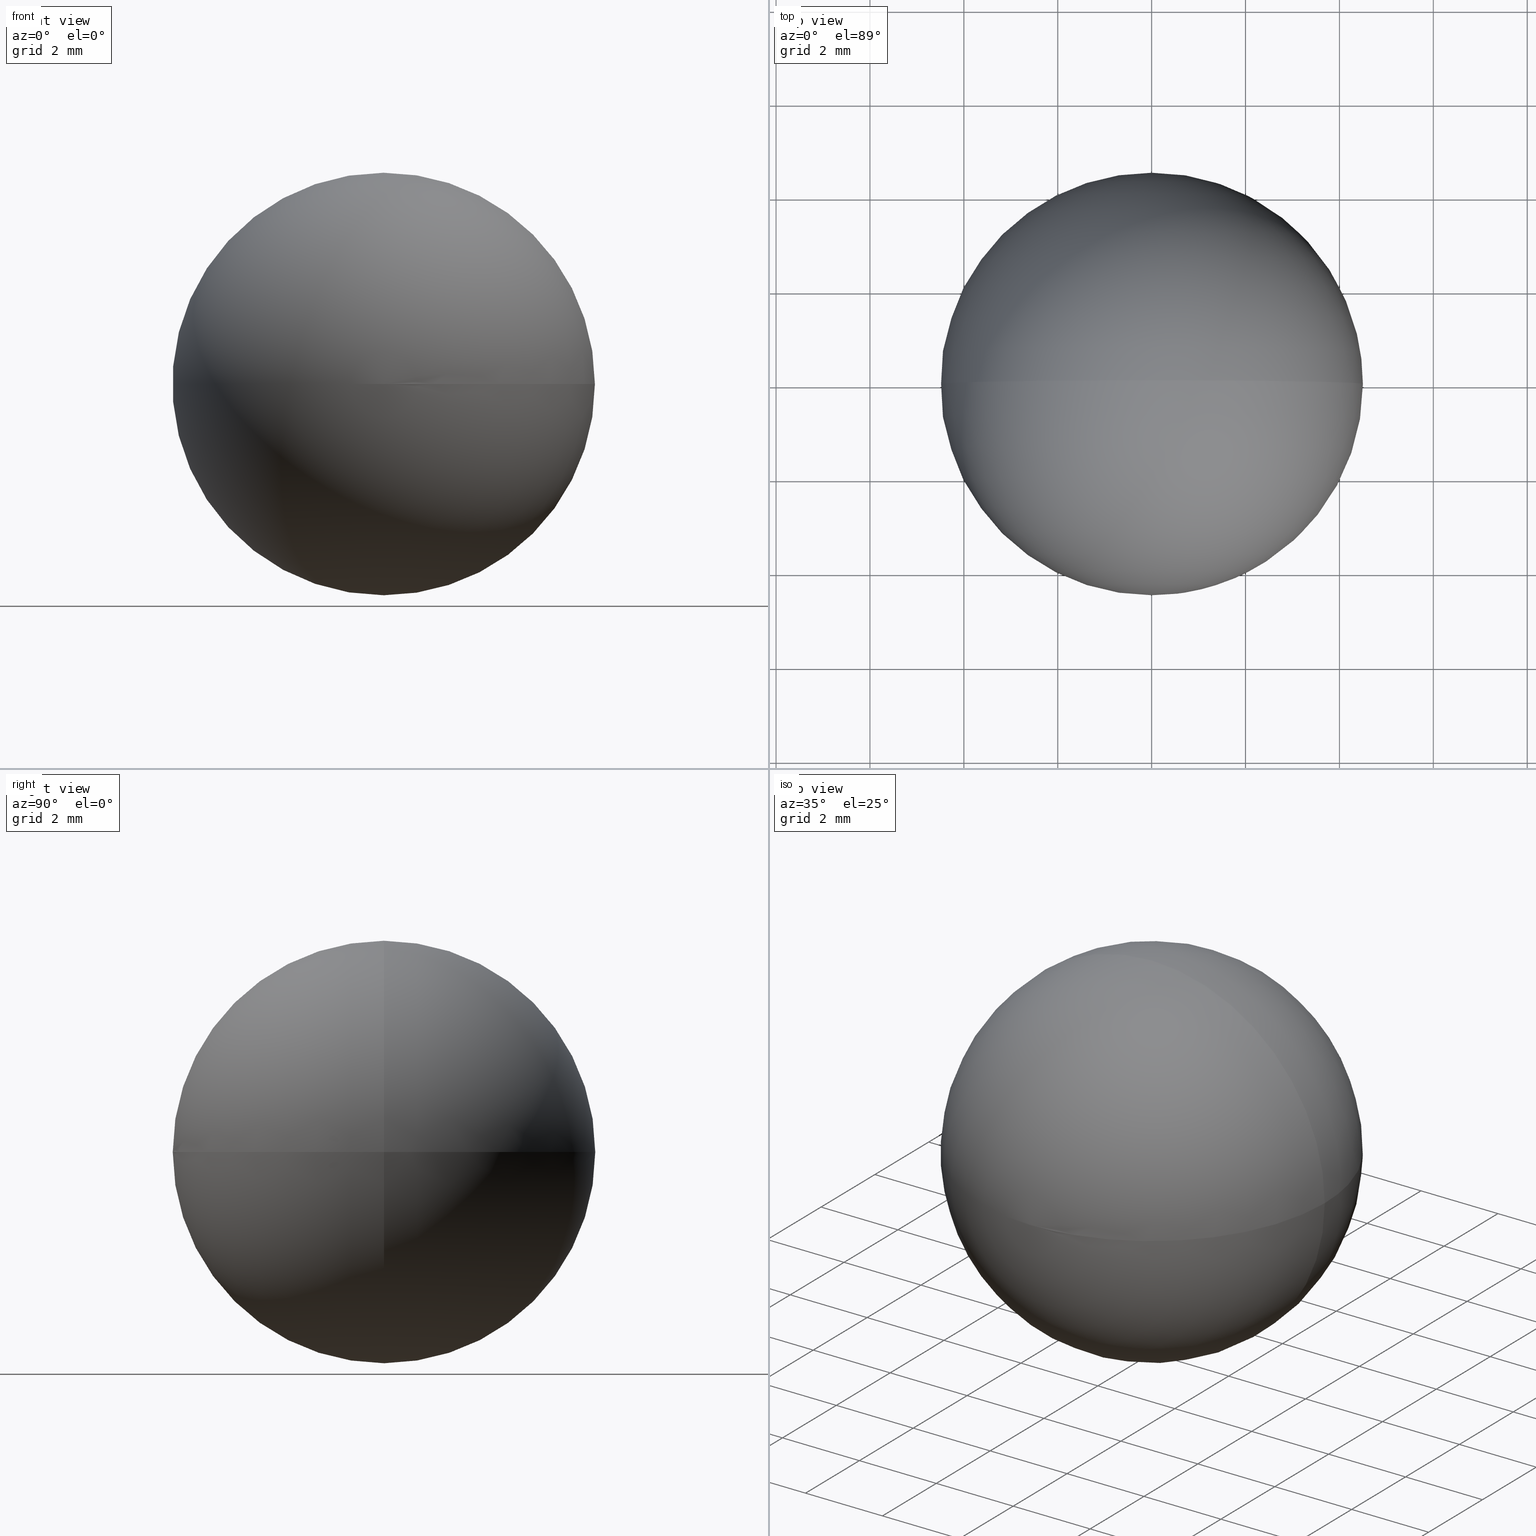
[diagram: canonical four-view strip — front | top / right | iso, engineering-drawing reading convention]
A machine part, canonical four-view strip (front | top / right | iso — engineering-drawing reading convention). The complete STEP part file that produces these views, byte-faithful:
ISO-10303-21;
HEADER;
FILE_DESCRIPTION (( 'STEP AP203' ),
    '1' );
FILE_NAME ('160008.STEP',
    '2019-06-05T05:54:04',
    ( '' ),
    ( '' ),
    'SwSTEP 2.0',
    'SolidWorks 2016',
    '' );
FILE_SCHEMA (( 'CONFIG_CONTROL_DESIGN' ));
ENDSEC;

DATA;
#1 = LOCAL_TIME ( 13, 54, 4.000000000000000000, #33 ) ;
#2 = CC_DESIGN_PERSON_AND_ORGANIZATION_ASSIGNMENT ( #192, #31, ( #177 ) ) ;
#3 = COORDINATED_UNIVERSAL_TIME_OFFSET ( 8, 0, .AHEAD. ) ;
#4 = APPROVAL ( #49, 'δָ��' ) ;
#5 = PERSON_AND_ORGANIZATION ( #80, #64 ) ;
#6 = SECURITY_CLASSIFICATION_LEVEL ( 'unclassified' ) ;
#7 = PERSON_AND_ORGANIZATION ( #80, #64 ) ;
#8 = PRODUCT ( '160008', '160008', '', ( #167 ) ) ;
#9 = PERSON_AND_ORGANIZATION ( #80, #64 ) ;
#10 =( NAMED_UNIT ( * ) SI_UNIT ( $, .STERADIAN. ) SOLID_ANGLE_UNIT ( ) );
#11 = CALENDAR_DATE ( 2019, 5, 6 ) ;
#12 = PERSON_AND_ORGANIZATION ( #80, #64 ) ;
#13 = AXIS2_PLACEMENT_3D ( 'NONE', #103, #108, #181 ) ;
#14 = PERSON_AND_ORGANIZATION_ROLE ( 'design_owner' ) ;
#15 = CC_DESIGN_DATE_AND_TIME_ASSIGNMENT ( #21, #81, ( #36 ) ) ;
#16 = CC_DESIGN_DATE_AND_TIME_ASSIGNMENT ( #157, #179, ( #177 ) ) ;
#17 = APPROVAL_PERSON_ORGANIZATION ( #109, #4, #48 ) ;
#18 = DIRECTION ( 'NONE',  ( 1.224646799147353200E-016, -1.000000000000000000, 0.0000000000000000000 ) ) ;
#19 = APPROVAL_STATUS ( 'not_yet_approved' ) ;
#20 = CARTESIAN_POINT ( 'NONE',  ( 2.755455298081544300E-016, 0.0000000000000000000, -4.500000000000000000 ) ) ;
#21 = DATE_AND_TIME ( #55, #168 ) ;
#22 = CC_DESIGN_APPROVAL ( #132, ( #27 ) ) ;
#23 = PERSON_AND_ORGANIZATION ( #80, #64 ) ;
#24 = ADVANCED_FACE ( 'NONE', ( #56 ), #94, .T. ) ;
#25 = DIRECTION ( 'NONE',  ( 0.0000000000000000000, 0.0000000000000000000, 1.000000000000000000 ) ) ;
#26 = CALENDAR_DATE ( 2019, 5, 6 ) ;
#27 = PRODUCT_DEFINITION ( 'δ֪', '', #120, #122 ) ;
#28 = CC_DESIGN_PERSON_AND_ORGANIZATION_ASSIGNMENT ( #183, #193, ( #8 ) ) ;
#29 = PERSON_AND_ORGANIZATION_ROLE ( 'design_supplier' ) ;
#30 = VERTEX_POINT ( 'NONE', #138 ) ;
#31 = PERSON_AND_ORGANIZATION_ROLE ( 'classification_officer' ) ;
#32 = DIRECTION ( 'NONE',  ( 0.0000000000000000000, 0.0000000000000000000, 1.000000000000000000 ) ) ;
#33 = COORDINATED_UNIVERSAL_TIME_OFFSET ( 8, 0, .AHEAD. ) ;
#34 = CALENDAR_DATE ( 2019, 5, 6 ) ;
#35 = ADVANCED_BREP_SHAPE_REPRESENTATION ( '160008', ( #121, #44 ), #63 ) ;
#36 = SECURITY_CLASSIFICATION ( '', '', #6 ) ;
#37 = APPROVAL_STATUS ( 'not_yet_approved' ) ;
#38 = PERSON_AND_ORGANIZATION ( #80, #64 ) ;
#39 = ORIENTED_EDGE ( 'NONE', *, *, #154, .T. ) ;
#40 = AXIS2_PLACEMENT_3D ( 'NONE', #140, #18, #137 ) ;
#41 = APPLICATION_PROTOCOL_DEFINITION ( 'international standard', 'config_control_design', 1994, #92 ) ;
#42 = APPROVAL_PERSON_ORGANIZATION ( #93, #131, #100 ) ;
#43 = CIRCLE ( 'NONE', #40, 4.500000000000000000 ) ;
#44 = AXIS2_PLACEMENT_3D ( 'NONE', #83, #116, #143 ) ;
#45 = CALENDAR_DATE ( 2019, 5, 6 ) ;
#46 = VERTEX_POINT ( 'NONE', #20 ) ;
#47 = COORDINATED_UNIVERSAL_TIME_OFFSET ( 8, 0, .AHEAD. ) ;
#48 = APPROVAL_ROLE ( '' ) ;
#49 = APPROVAL_STATUS ( 'not_yet_approved' ) ;
#50 = APPROVAL_STATUS ( 'not_yet_approved' ) ;
#51 = PERSON_AND_ORGANIZATION_ROLE ( 'design_supplier' ) ;
#52 = CARTESIAN_POINT ( 'NONE',  ( 0.0000000000000000000, 0.0000000000000000000, 0.0000000000000000000 ) ) ;
#53 = APPROVAL_DATE_TIME ( #153, #98 ) ;
#54 = LOCAL_TIME ( 13, 54, 4.000000000000000000, #47 ) ;
#55 = CALENDAR_DATE ( 2019, 5, 6 ) ;
#56 = FACE_OUTER_BOUND ( 'NONE', #191, .T. ) ;
#57 = APPROVAL ( #195, 'δָ��' ) ;
#58 = COORDINATED_UNIVERSAL_TIME_OFFSET ( 8, 0, .AHEAD. ) ;
#59 = ORIENTED_EDGE ( 'NONE', *, *, #124, .F. ) ;
#60 = LOCAL_TIME ( 13, 54, 4.000000000000000000, #176 ) ;
#61 = ORIENTED_EDGE ( 'NONE', *, *, #154, .F. ) ;
#62 = DESIGN_CONTEXT ( 'detailed design', #72, 'design' ) ;
#63 =( GEOMETRIC_REPRESENTATION_CONTEXT ( 3 ) GLOBAL_UNCERTAINTY_ASSIGNED_CONTEXT ( ( #148 ) ) GLOBAL_UNIT_ASSIGNED_CONTEXT ( ( #182, #82, #10 ) ) REPRESENTATION_CONTEXT ( 'NONE', 'WORKASPACE' ) );
#64 = ORGANIZATION ( 'δָ��', 'δָ��', '' ) ;
#65 = DATE_AND_TIME ( #11, #54 ) ;
#66 = CALENDAR_DATE ( 2019, 5, 6 ) ;
#67 = APPLICATION_PROTOCOL_DEFINITION ( 'international standard', 'config_control_design', 1994, #115 ) ;
#68 = DIRECTION ( 'NONE',  ( 1.000000000000000000, 0.0000000000000000000, 0.0000000000000000000 ) ) ;
#69 = PERSON_AND_ORGANIZATION_ROLE ( 'classification_officer' ) ;
#70 = CC_DESIGN_APPROVAL ( #98, ( #89 ) ) ;
#71 = DIRECTION ( 'NONE',  ( 0.0000000000000000000, 1.000000000000000000, -0.0000000000000000000 ) ) ;
#72 = APPLICATION_CONTEXT ( 'configuration controlled 3d designs of mechanical parts and assemblies' ) ;
#73 = AXIS2_PLACEMENT_3D ( 'NONE', #199, #71, #32 ) ;
#74 = PERSON_AND_ORGANIZATION ( #80, #64 ) ;
#75 = PRODUCT_DEFINITION_SHAPE ( 'NONE', 'NONE',  #27 ) ;
#76 = CALENDAR_DATE ( 2019, 5, 6 ) ;
#77 = PERSON_AND_ORGANIZATION_ROLE ( 'creator' ) ;
#78 = CC_DESIGN_APPROVAL ( #4, ( #177 ) ) ;
#79 = APPROVAL_STATUS ( 'not_yet_approved' ) ;
#80 = PERSON ( 'δָ��', 'δָ��', 'δָ��', ('δָ��'), ('δָ��'), ('δָ��') ) ;
#81 = DATE_TIME_ROLE ( 'classification_date' ) ;
#82 =( NAMED_UNIT ( * ) PLANE_ANGLE_UNIT ( ) SI_UNIT ( $, .RADIAN. ) );
#83 = CARTESIAN_POINT ( 'NONE',  ( 0.0000000000000000000, 0.0000000000000000000, 0.0000000000000000000 ) ) ;
#84 = APPROVAL_PERSON_ORGANIZATION ( #119, #57, #102 ) ;
#85 = CC_DESIGN_DATE_AND_TIME_ASSIGNMENT ( #86, #180, ( #27 ) ) ;
#86 = DATE_AND_TIME ( #161, #129 ) ;
#87 = SPHERICAL_SURFACE ( 'NONE', #13, 4.500000000000000000 ) ;
#88 = CC_DESIGN_APPROVAL ( #57, ( #36 ) ) ;
#89 = PRODUCT_DEFINITION ( 'δ֪', '', #111, #62 ) ;
#90 = EDGE_LOOP ( 'NONE', ( #59, #39 ) ) ;
#91 = PERSON_AND_ORGANIZATION ( #80, #64 ) ;
#92 = APPLICATION_CONTEXT ( 'configuration controlled 3d designs of mechanical parts and assemblies' ) ;
#93 = PERSON_AND_ORGANIZATION ( #80, #64 ) ;
#94 = SPHERICAL_SURFACE ( 'NONE', #152, 4.500000000000000000 ) ;
#95 = DATE_AND_TIME ( #101, #149 ) ;
#96 = COORDINATED_UNIVERSAL_TIME_OFFSET ( 8, 0, .AHEAD. ) ;
#97 = APPROVAL_DATE_TIME ( #142, #132 ) ;
#98 = APPROVAL ( #37, 'δָ��' ) ;
#99 = DATE_AND_TIME ( #146, #144 ) ;
#100 = APPROVAL_ROLE ( '' ) ;
#101 = CALENDAR_DATE ( 2019, 5, 6 ) ;
#102 = APPROVAL_ROLE ( '' ) ;
#103 = CARTESIAN_POINT ( 'NONE',  ( 0.0000000000000000000, 0.0000000000000000000, 0.0000000000000000000 ) ) ;
#104 = CC_DESIGN_SECURITY_CLASSIFICATION ( #36, ( #120 ) ) ;
#105 = LOCAL_TIME ( 13, 54, 4.000000000000000000, #127 ) ;
#106 = CC_DESIGN_PERSON_AND_ORGANIZATION_ASSIGNMENT ( #12, #125, ( #89 ) ) ;
#107 = CARTESIAN_POINT ( 'NONE',  ( 0.0000000000000000000, 0.0000000000000000000, 0.0000000000000000000 ) ) ;
#108 = DIRECTION ( 'NONE',  ( 0.0000000000000000000, -1.000000000000000000, -0.0000000000000000000 ) ) ;
#109 = PERSON_AND_ORGANIZATION ( #80, #64 ) ;
#110 = CC_DESIGN_SECURITY_CLASSIFICATION ( #177, ( #111 ) ) ;
#111 = PRODUCT_DEFINITION_FORMATION_WITH_SPECIFIED_SOURCE ( '�κ�', '', #194, .NOT_KNOWN. ) ;
#112 = PRODUCT_RELATED_PRODUCT_CATEGORY ( 'detail', '', ( #8 ) ) ;
#113 = CC_DESIGN_PERSON_AND_ORGANIZATION_ASSIGNMENT ( #203, #51, ( #111 ) ) ;
#114 = DATE_AND_TIME ( #26, #1 ) ;
#115 = APPLICATION_CONTEXT ( 'configuration controlled 3d designs of mechanical parts and assemblies' ) ;
#116 = DIRECTION ( 'NONE',  ( 0.0000000000000000000, 0.0000000000000000000, 1.000000000000000000 ) ) ;
#117 = PRODUCT_DEFINITION_SHAPE ( 'NONE', 'NONE',  #89 ) ;
#118 = ADVANCED_FACE ( 'NONE', ( #123 ), #87, .T. ) ;
#119 = PERSON_AND_ORGANIZATION ( #80, #64 ) ;
#120 = PRODUCT_DEFINITION_FORMATION_WITH_SPECIFIED_SOURCE ( '�κ�', '', #8, .NOT_KNOWN. ) ;
#121 = MANIFOLD_SOLID_BREP ( '��ת2', #170 ) ;
#122 = DESIGN_CONTEXT ( 'detailed design', #115, 'design' ) ;
#123 = FACE_OUTER_BOUND ( 'NONE', #90, .T. ) ;
#124 = EDGE_CURVE ( 'NONE', #30, #46, #43, .T. ) ;
#125 = PERSON_AND_ORGANIZATION_ROLE ( 'creator' ) ;
#126 = DATE_TIME_ROLE ( 'creation_date' ) ;
#127 = COORDINATED_UNIVERSAL_TIME_OFFSET ( 8, 0, .AHEAD. ) ;
#128 = APPLICATION_PROTOCOL_DEFINITION ( 'international standard', 'config_control_design', 1994, #72 ) ;
#129 = LOCAL_TIME ( 13, 54, 4.000000000000000000, #141 ) ;
#130 = LOCAL_TIME ( 13, 54, 4.000000000000000000, #58 ) ;
#131 = APPROVAL ( #50, 'δָ��' ) ;
#132 = APPROVAL ( #19, 'δָ��' ) ;
#133 = SHAPE_DEFINITION_REPRESENTATION ( #75, #35 ) ;
#134 = APPROVAL_ROLE ( '' ) ;
#135 = COORDINATED_UNIVERSAL_TIME_OFFSET ( 8, 0, .AHEAD. ) ;
#136 = APPROVAL_ROLE ( '' ) ;
#137 = DIRECTION ( 'NONE',  ( 1.000000000000000000, 1.224646799147353000E-016, 0.0000000000000000000 ) ) ;
#138 = CARTESIAN_POINT ( 'NONE',  ( 2.755455298081544300E-016, 0.0000000000000000000, 4.500000000000000000 ) ) ;
#139 = APPROVAL_PERSON_ORGANIZATION ( #74, #162, #134 ) ;
#140 = CARTESIAN_POINT ( 'NONE',  ( 0.0000000000000000000, 0.0000000000000000000, 0.0000000000000000000 ) ) ;
#141 = COORDINATED_UNIVERSAL_TIME_OFFSET ( 8, 0, .AHEAD. ) ;
#142 = DATE_AND_TIME ( #34, #130 ) ;
#143 = DIRECTION ( 'NONE',  ( 1.000000000000000000, 0.0000000000000000000, 0.0000000000000000000 ) ) ;
#144 = LOCAL_TIME ( 13, 54, 4.000000000000000000, #173 ) ;
#145 = CC_DESIGN_APPROVAL ( #131, ( #120 ) ) ;
#146 = CALENDAR_DATE ( 2019, 5, 6 ) ;
#147 = CC_DESIGN_PERSON_AND_ORGANIZATION_ASSIGNMENT ( #23, #29, ( #120 ) ) ;
#148 = UNCERTAINTY_MEASURE_WITH_UNIT (LENGTH_MEASURE( 1.000000000000000100E-005 ), #182, 'distance_accuracy_value', 'NONE');
#149 = LOCAL_TIME ( 13, 54, 4.000000000000000000, #3 ) ;
#150 = APPROVAL_PERSON_ORGANIZATION ( #187, #98, #188 ) ;
#151 = APPROVAL_DATE_TIME ( #99, #131 ) ;
#152 = AXIS2_PLACEMENT_3D ( 'NONE', #107, #165, #68 ) ;
#153 = DATE_AND_TIME ( #76, #105 ) ;
#154 = EDGE_CURVE ( 'NONE', #30, #46, #174, .T. ) ;
#155 = SECURITY_CLASSIFICATION_LEVEL ( 'unclassified' ) ;
#156 = AXIS2_PLACEMENT_3D ( 'NONE', #52, #25, #201 ) ;
#157 = DATE_AND_TIME ( #66, #198 ) ;
#158 = MECHANICAL_CONTEXT ( 'NONE', #92, 'mechanical' ) ;
#159 = CC_DESIGN_PERSON_AND_ORGANIZATION_ASSIGNMENT ( #190, #14, ( #194 ) ) ;
#160 = APPROVAL_DATE_TIME ( #114, #162 ) ;
#161 = CALENDAR_DATE ( 2019, 5, 6 ) ;
#162 = APPROVAL ( #79, 'δָ��' ) ;
#163 = CC_DESIGN_DATE_AND_TIME_ASSIGNMENT ( #184, #126, ( #89 ) ) ;
#164 = APPLICATION_PROTOCOL_DEFINITION ( 'international standard', 'config_control_design', 1994, #197 ) ;
#165 = DIRECTION ( 'NONE',  ( 0.0000000000000000000, -1.000000000000000000, -0.0000000000000000000 ) ) ;
#166 = PERSON_AND_ORGANIZATION_ROLE ( 'creator' ) ;
#167 = MECHANICAL_CONTEXT ( 'NONE', #197, 'mechanical' ) ;
#168 = LOCAL_TIME ( 13, 54, 4.000000000000000000, #96 ) ;
#169 = CC_DESIGN_PERSON_AND_ORGANIZATION_ASSIGNMENT ( #7, #69, ( #36 ) ) ;
#170 = CLOSED_SHELL ( 'NONE', ( #24, #118 ) ) ;
#171 = CC_DESIGN_PERSON_AND_ORGANIZATION_ASSIGNMENT ( #5, #166, ( #120 ) ) ;
#172 = CC_DESIGN_PERSON_AND_ORGANIZATION_ASSIGNMENT ( #91, #178, ( #27 ) ) ;
#173 = COORDINATED_UNIVERSAL_TIME_OFFSET ( 8, 0, .AHEAD. ) ;
#174 = CIRCLE ( 'NONE', #73, 4.500000000000000000 ) ;
#175 = APPROVAL_DATE_TIME ( #95, #4 ) ;
#176 = COORDINATED_UNIVERSAL_TIME_OFFSET ( 8, 0, .AHEAD. ) ;
#177 = SECURITY_CLASSIFICATION ( '', '', #155 ) ;
#178 = PERSON_AND_ORGANIZATION_ROLE ( 'creator' ) ;
#179 = DATE_TIME_ROLE ( 'classification_date' ) ;
#180 = DATE_TIME_ROLE ( 'creation_date' ) ;
#181 = DIRECTION ( 'NONE',  ( 1.000000000000000000, 0.0000000000000000000, 0.0000000000000000000 ) ) ;
#182 =( LENGTH_UNIT ( ) NAMED_UNIT ( * ) SI_UNIT ( .MILLI., .METRE. ) );
#183 = PERSON_AND_ORGANIZATION ( #80, #64 ) ;
#184 = DATE_AND_TIME ( #45, #60 ) ;
#185 = APPROVAL_DATE_TIME ( #65, #57 ) ;
#186 = APPROVAL_PERSON_ORGANIZATION ( #38, #132, #136 ) ;
#187 = PERSON_AND_ORGANIZATION ( #80, #64 ) ;
#188 = APPROVAL_ROLE ( '' ) ;
#189 = PRODUCT_RELATED_PRODUCT_CATEGORY ( 'detail', '', ( #194 ) ) ;
#190 = PERSON_AND_ORGANIZATION ( #80, #64 ) ;
#191 = EDGE_LOOP ( 'NONE', ( #61, #196 ) ) ;
#192 = PERSON_AND_ORGANIZATION ( #80, #64 ) ;
#193 = PERSON_AND_ORGANIZATION_ROLE ( 'design_owner' ) ;
#194 = PRODUCT ( '160008', '160008', '', ( #158 ) ) ;
#195 = APPROVAL_STATUS ( 'not_yet_approved' ) ;
#196 = ORIENTED_EDGE ( 'NONE', *, *, #124, .T. ) ;
#197 = APPLICATION_CONTEXT ( 'configuration controlled 3d designs of mechanical parts and assemblies' ) ;
#198 = LOCAL_TIME ( 13, 54, 4.000000000000000000, #135 ) ;
#199 = CARTESIAN_POINT ( 'NONE',  ( 0.0000000000000000000, 0.0000000000000000000, 0.0000000000000000000 ) ) ;
#200 = CC_DESIGN_PERSON_AND_ORGANIZATION_ASSIGNMENT ( #9, #77, ( #111 ) ) ;
#201 = DIRECTION ( 'NONE',  ( 1.000000000000000000, 0.0000000000000000000, 0.0000000000000000000 ) ) ;
#202 = CC_DESIGN_APPROVAL ( #162, ( #111 ) ) ;
#203 = PERSON_AND_ORGANIZATION ( #80, #64 ) ;
ENDSEC;
END-ISO-10303-21;
